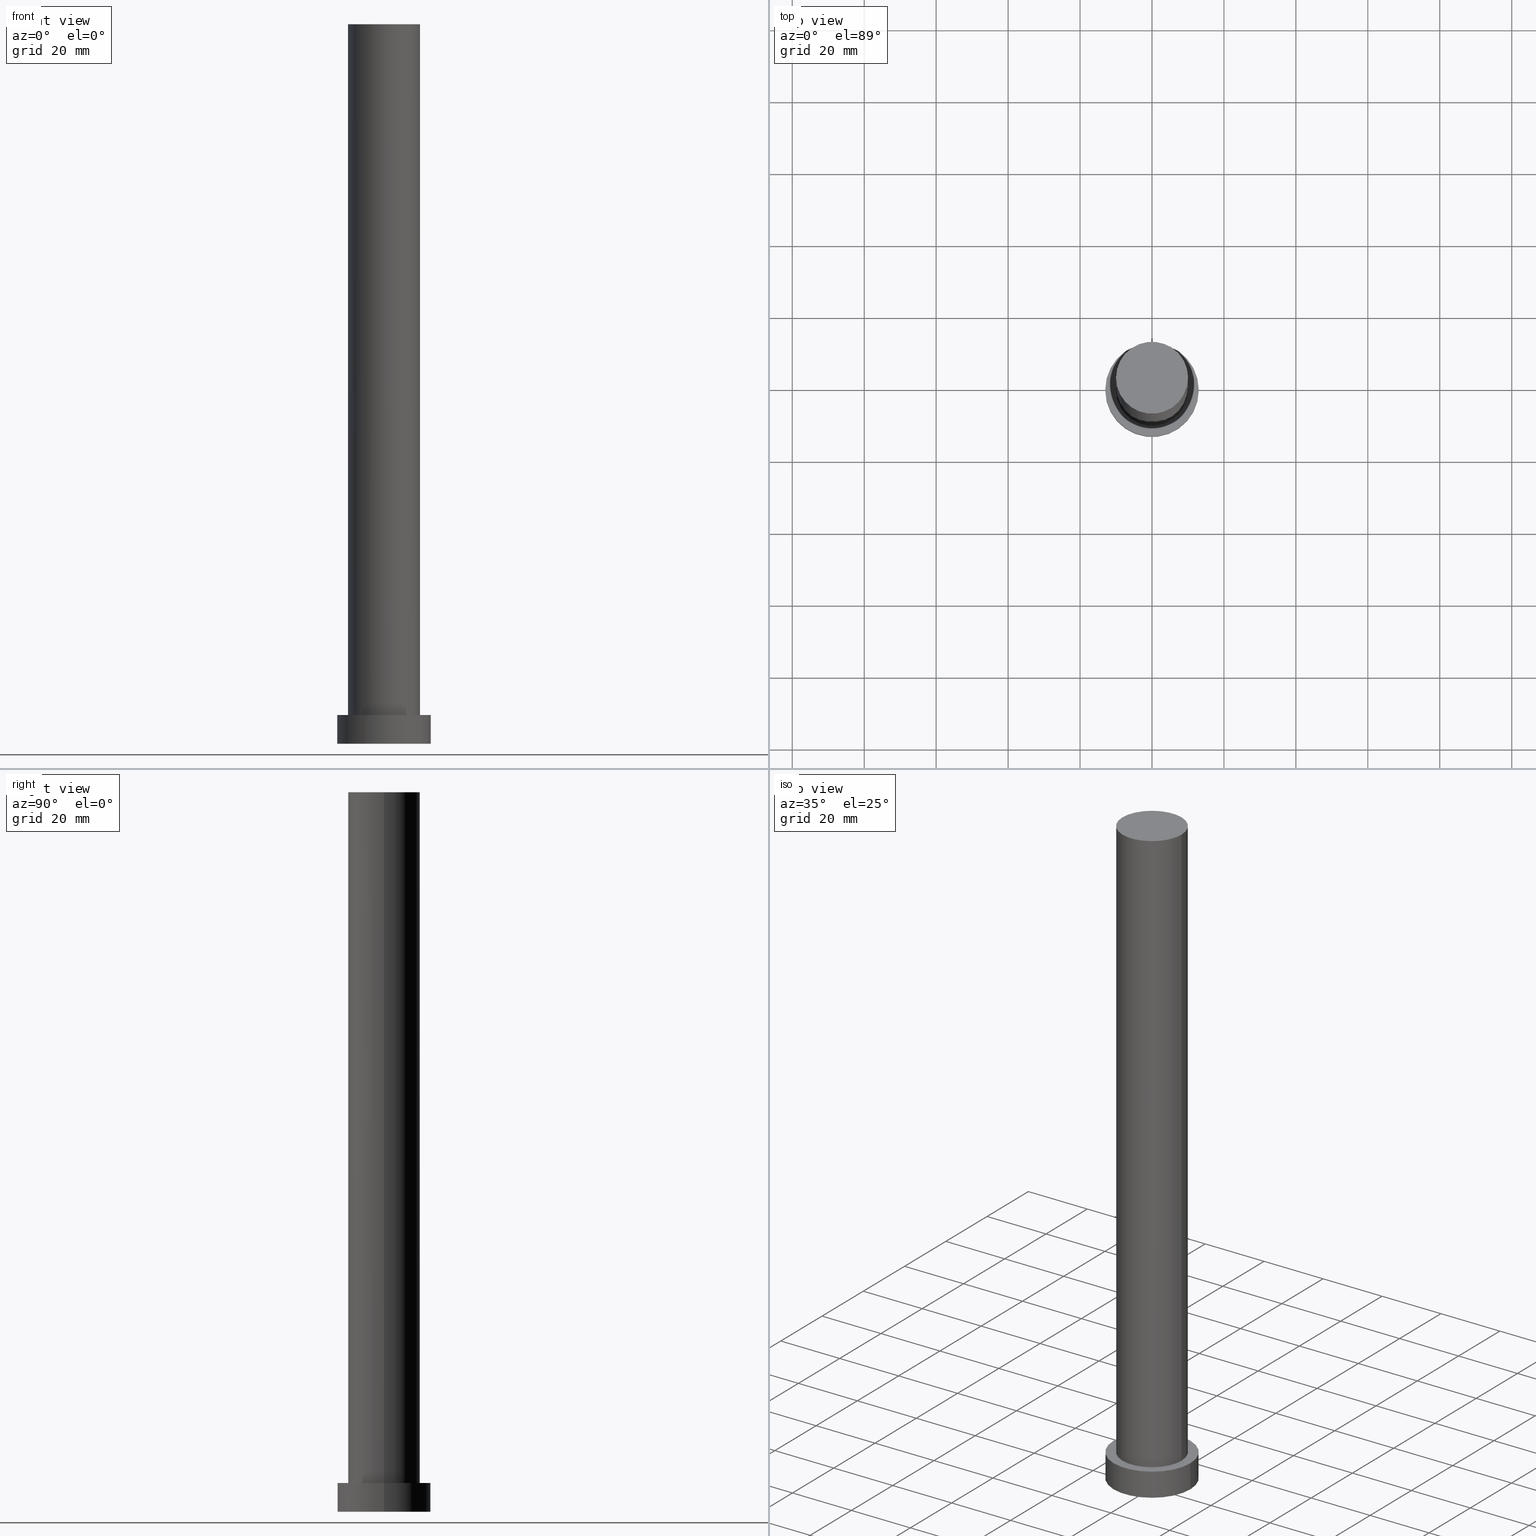
[diagram: canonical four-view strip — front | top / right | iso, engineering-drawing reading convention]
A machine part, canonical four-view strip (front | top / right | iso — engineering-drawing reading convention). The complete STEP part file that produces these views, byte-faithful:
ISO-10303-21;
HEADER;
FILE_DESCRIPTION (( 'STEP AP203' ),
    '1' );
FILE_NAME ('2b24.STEP',
    '2023-02-12T10:32:56',
    ( '' ),
    ( '' ),
    'SwSTEP 2.0',
    'SolidWorks 2019',
    '' );
FILE_SCHEMA (( 'CONFIG_CONTROL_DESIGN' ));
ENDSEC;

DATA;
#1 = CARTESIAN_POINT ( 'NONE',  ( 10.00000000000000000, 1.224646799147353256E-15, 8.000000000000000000 ) ) ;
#2 = CLOSED_SHELL ( 'NONE', ( #17, #122, #149, #227, #193, #126, #152 ) ) ;
#3 = APPROVAL_PERSON_ORGANIZATION ( #115, #173, #223 ) ;
#4 = DIRECTION ( 'NONE',  ( 1.000000000000000000, 0.000000000000000000, 0.000000000000000000 ) ) ;
#5 = FACE_OUTER_BOUND ( 'NONE', #71, .T. ) ;
#6 = APPLICATION_PROTOCOL_DEFINITION ( 'international standard', 'config_control_design', 1994, #162 ) ;
#7 = AXIS2_PLACEMENT_3D ( 'NONE', #160, #60, #157 ) ;
#8 = CALENDAR_DATE ( 2023, 12, 2 ) ;
#9 = MECHANICAL_CONTEXT ( 'NONE', #175, 'mechanical' ) ;
#10 = PERSON_AND_ORGANIZATION_ROLE ( 'design_supplier' ) ;
#11 = APPROVAL_STATUS ( 'not_yet_approved' ) ;
#12 = DIRECTION ( 'NONE',  ( 1.000000000000000000, 0.000000000000000000, 0.000000000000000000 ) ) ;
#13 = ORIENTED_EDGE ( 'NONE', *, *, #253, .T. ) ;
#14 = CYLINDRICAL_SURFACE ( 'NONE', #133, 10.00000000000000000 ) ;
#15 = CARTESIAN_POINT ( 'NONE',  ( 0.000000000000000000, 0.000000000000000000, 200.0000000000000000 ) ) ;
#16 = CARTESIAN_POINT ( 'NONE',  ( 0.000000000000000000, 0.000000000000000000, 0.000000000000000000 ) ) ;
#17 = ADVANCED_FACE ( 'NONE', ( #166 ), #14, .T. ) ;
#18 = LOCAL_TIME ( 11, 32, 56.00000000000000000, #201 ) ;
#19 = DIRECTION ( 'NONE',  ( 1.000000000000000000, 0.000000000000000000, 0.000000000000000000 ) ) ;
#20 = CARTESIAN_POINT ( 'NONE',  ( 0.000000000000000000, 0.000000000000000000, 8.000000000000000000 ) ) ;
#21 = DIRECTION ( 'NONE',  ( 0.000000000000000000, 0.000000000000000000, 1.000000000000000000 ) ) ;
#22 = CARTESIAN_POINT ( 'NONE',  ( 0.000000000000000000, 0.000000000000000000, 200.0000000000000000 ) ) ;
#23 = CARTESIAN_POINT ( 'NONE',  ( 0.000000000000000000, 0.000000000000000000, 8.000000000000000000 ) ) ;
#24 = COORDINATED_UNIVERSAL_TIME_OFFSET ( 1, 0, .AHEAD. ) ;
#25 = CC_DESIGN_SECURITY_CLASSIFICATION ( #99, ( #102 ) ) ;
#26 = CARTESIAN_POINT ( 'NONE',  ( 13.00000000000000178, 1.592040838891559293E-15, 0.000000000000000000 ) ) ;
#27 = CC_DESIGN_PERSON_AND_ORGANIZATION_ASSIGNMENT ( #137, #42, ( #52 ) ) ;
#28 = PERSON_AND_ORGANIZATION ( #222, #148 ) ;
#29 = EDGE_LOOP ( 'NONE', ( #62, #121, #214, #211 ) ) ;
#30 = CC_DESIGN_PERSON_AND_ORGANIZATION_ASSIGNMENT ( #178, #78, ( #237 ) ) ;
#31 = VERTEX_POINT ( 'NONE', #169 ) ;
#32 = APPROVAL_DATE_TIME ( #210, #73 ) ;
#33 = DIRECTION ( 'NONE',  ( -0.000000000000000000, -0.000000000000000000, -1.000000000000000000 ) ) ;
#34 = LINE ( 'NONE', #170, #154 ) ;
#35 = CYLINDRICAL_SURFACE ( 'NONE', #119, 13.00000000000000178 ) ;
#36 = DIRECTION ( 'NONE',  ( 0.000000000000000000, 0.000000000000000000, 1.000000000000000000 ) ) ;
#37 = DATE_TIME_ROLE ( 'creation_date' ) ;
#38 = DATE_AND_TIME ( #207, #163 ) ;
#39 = CALENDAR_DATE ( 2023, 12, 2 ) ;
#40 = LOCAL_TIME ( 11, 32, 56.00000000000000000, #231 ) ;
#41 = CC_DESIGN_PERSON_AND_ORGANIZATION_ASSIGNMENT ( #186, #10, ( #102 ) ) ;
#42 = PERSON_AND_ORGANIZATION_ROLE ( 'creator' ) ;
#43 = SHAPE_DEFINITION_REPRESENTATION ( #70, #184 ) ;
#44 = ORIENTED_EDGE ( 'NONE', *, *, #179, .T. ) ;
#45 = AXIS2_PLACEMENT_3D ( 'NONE', #131, #56, #153 ) ;
#46 = AXIS2_PLACEMENT_3D ( 'NONE', #23, #158, #206 ) ;
#47 = ORIENTED_EDGE ( 'NONE', *, *, #203, .F. ) ;
#48 = DIRECTION ( 'NONE',  ( -0.000000000000000000, -0.000000000000000000, -1.000000000000000000 ) ) ;
#49 = VECTOR ( 'NONE', #174, 1000.000000000000000 ) ;
#50 = EDGE_LOOP ( 'NONE', ( #250, #230, #68, #145 ) ) ;
#51 = FACE_OUTER_BOUND ( 'NONE', #69, .T. ) ;
#52 = PRODUCT_DEFINITION ( 'NEZN�M�', '', #102, #67 ) ;
#53 = CARTESIAN_POINT ( 'NONE',  ( -13.00000000000000178, 0.000000000000000000, 8.000000000000000000 ) ) ;
#54 = DIRECTION ( 'NONE',  ( 0.000000000000000000, 0.000000000000000000, 1.000000000000000000 ) ) ;
#55 = DIRECTION ( 'NONE',  ( 1.000000000000000000, 0.000000000000000000, -0.000000000000000000 ) ) ;
#56 = DIRECTION ( 'NONE',  ( 0.000000000000000000, 0.000000000000000000, 1.000000000000000000 ) ) ;
#57 = CC_DESIGN_PERSON_AND_ORGANIZATION_ASSIGNMENT ( #247, #144, ( #99 ) ) ;
#58 =( LENGTH_UNIT ( ) NAMED_UNIT ( * ) SI_UNIT ( .MILLI., .METRE. ) );
#59 = AXIS2_PLACEMENT_3D ( 'NONE', #75, #151, #19 ) ;
#60 = DIRECTION ( 'NONE',  ( 0.000000000000000000, 0.000000000000000000, 1.000000000000000000 ) ) ;
#61 = PLANE ( 'NONE',  #46 ) ;
#62 = ORIENTED_EDGE ( 'NONE', *, *, #113, .F. ) ;
#63 = EDGE_CURVE ( 'NONE', #164, #86, #242, .T. ) ;
#64 = CALENDAR_DATE ( 2023, 12, 2 ) ;
#65 = ORIENTED_EDGE ( 'NONE', *, *, #179, .F. ) ;
#66 = VECTOR ( 'NONE', #194, 1000.000000000000000 ) ;
#67 = DESIGN_CONTEXT ( 'detailed design', #162, 'design' ) ;
#68 = ORIENTED_EDGE ( 'NONE', *, *, #203, .T. ) ;
#69 = EDGE_LOOP ( 'NONE', ( #251, #104 ) ) ;
#70 = PRODUCT_DEFINITION_SHAPE ( 'NONE', 'NONE',  #52 ) ;
#71 = EDGE_LOOP ( 'NONE', ( #44, #168 ) ) ;
#72 = CC_DESIGN_APPROVAL ( #73, ( #99 ) ) ;
#73 = APPROVAL ( #11, 'NEUR�EN�' ) ;
#74 = CARTESIAN_POINT ( 'NONE',  ( 0.000000000000000000, 0.000000000000000000, 8.000000000000000000 ) ) ;
#75 = CARTESIAN_POINT ( 'NONE',  ( 0.000000000000000000, 0.000000000000000000, 8.000000000000000000 ) ) ;
#76 = DIRECTION ( 'NONE',  ( -0.000000000000000000, -0.000000000000000000, -1.000000000000000000 ) ) ;
#77 = LINE ( 'NONE', #109, #66 ) ;
#78 = PERSON_AND_ORGANIZATION_ROLE ( 'design_owner' ) ;
#79 = FACE_BOUND ( 'NONE', #209, .T. ) ;
#80 = AXIS2_PLACEMENT_3D ( 'NONE', #114, #96, #4 ) ;
#81 = APPROVAL_DATE_TIME ( #97, #196 ) ;
#82 = APPROVAL_ROLE ( '' ) ;
#83 = SECURITY_CLASSIFICATION_LEVEL ( 'unclassified' ) ;
#84 = VERTEX_POINT ( 'NONE', #132 ) ;
#85 = ORIENTED_EDGE ( 'NONE', *, *, #116, .T. ) ;
#86 = VERTEX_POINT ( 'NONE', #1 ) ;
#87 = LOCAL_TIME ( 11, 32, 56.00000000000000000, #24 ) ;
#88 = AXIS2_PLACEMENT_3D ( 'NONE', #16, #110, #91 ) ;
#89 = ORIENTED_EDGE ( 'NONE', *, *, #95, .T. ) ;
#90 = ORIENTED_EDGE ( 'NONE', *, *, #161, .T. ) ;
#91 = DIRECTION ( 'NONE',  ( 1.000000000000000000, 0.000000000000000000, 0.000000000000000000 ) ) ;
#92 = DIRECTION ( 'NONE',  ( -0.000000000000000000, -0.000000000000000000, -1.000000000000000000 ) ) ;
#93 = CYLINDRICAL_SURFACE ( 'NONE', #187, 10.00000000000000000 ) ;
#94 = CARTESIAN_POINT ( 'NONE',  ( -10.00000000000000000, 0.000000000000000000, 8.000000000000000000 ) ) ;
#95 = EDGE_CURVE ( 'NONE', #140, #105, #172, .T. ) ;
#96 = DIRECTION ( 'NONE',  ( 0.000000000000000000, 0.000000000000000000, 1.000000000000000000 ) ) ;
#97 = DATE_AND_TIME ( #8, #18 ) ;
#98 = EDGE_CURVE ( 'NONE', #105, #234, #213, .T. ) ;
#99 = SECURITY_CLASSIFICATION ( '', '', #83 ) ;
#100 = EDGE_CURVE ( 'NONE', #234, #105, #205, .T. ) ;
#101 = DIRECTION ( 'NONE',  ( 0.000000000000000000, 0.000000000000000000, 1.000000000000000000 ) ) ;
#102 = PRODUCT_DEFINITION_FORMATION_WITH_SPECIFIED_SOURCE ( 'LIBOVOLN�', '', #237, .NOT_KNOWN. ) ;
#103 = CALENDAR_DATE ( 2023, 12, 2 ) ;
#104 = ORIENTED_EDGE ( 'NONE', *, *, #100, .F. ) ;
#105 = VERTEX_POINT ( 'NONE', #128 ) ;
#106 = AXIS2_PLACEMENT_3D ( 'NONE', #244, #182, #245 ) ;
#107 = APPROVAL_ROLE ( '' ) ;
#108 = EDGE_LOOP ( 'NONE', ( #90, #13 ) ) ;
#109 = CARTESIAN_POINT ( 'NONE',  ( -10.00000000000000000, 0.000000000000000000, 200.0000000000000000 ) ) ;
#110 = DIRECTION ( 'NONE',  ( 0.000000000000000000, 0.000000000000000000, 1.000000000000000000 ) ) ;
#111 = FACE_OUTER_BOUND ( 'NONE', #29, .T. ) ;
#112 = DIRECTION ( 'NONE',  ( 0.000000000000000000, 0.000000000000000000, 1.000000000000000000 ) ) ;
#113 = EDGE_CURVE ( 'NONE', #31, #86, #34, .T. ) ;
#114 = CARTESIAN_POINT ( 'NONE',  ( 0.000000000000000000, 0.000000000000000000, 8.000000000000000000 ) ) ;
#115 = PERSON_AND_ORGANIZATION ( #222, #148 ) ;
#116 = EDGE_CURVE ( 'NONE', #146, #234, #155, .T. ) ;
#117 = PERSON_AND_ORGANIZATION_ROLE ( 'creator' ) ;
#118 = APPROVAL_STATUS ( 'not_yet_approved' ) ;
#119 = AXIS2_PLACEMENT_3D ( 'NONE', #74, #33, #241 ) ;
#120 = DATE_TIME_ROLE ( 'classification_date' ) ;
#121 = ORIENTED_EDGE ( 'NONE', *, *, #161, .F. ) ;
#122 = ADVANCED_FACE ( 'NONE', ( #127 ), #240, .T. ) ;
#123 = DIRECTION ( 'NONE',  ( -1.000000000000000000, 0.000000000000000000, 0.000000000000000000 ) ) ;
#124 = AXIS2_PLACEMENT_3D ( 'NONE', #177, #54, #198 ) ;
#125 = CARTESIAN_POINT ( 'NONE',  ( 0.000000000000000000, 0.000000000000000000, 8.000000000000000000 ) ) ;
#126 = ADVANCED_FACE ( 'NONE', ( #111 ), #93, .T. ) ;
#127 = FACE_OUTER_BOUND ( 'NONE', #191, .T. ) ;
#128 = CARTESIAN_POINT ( 'NONE',  ( -13.00000000000000178, 0.000000000000000000, 0.000000000000000000 ) ) ;
#129 = LOCAL_TIME ( 11, 32, 56.00000000000000000, #139 ) ;
#130 = FACE_OUTER_BOUND ( 'NONE', #108, .T. ) ;
#131 = CARTESIAN_POINT ( 'NONE',  ( 0.000000000000000000, 0.000000000000000000, 200.0000000000000000 ) ) ;
#132 = CARTESIAN_POINT ( 'NONE',  ( -10.00000000000000000, 0.000000000000000000, 200.0000000000000000 ) ) ;
#133 = AXIS2_PLACEMENT_3D ( 'NONE', #15, #48, #123 ) ;
#134 = DATE_AND_TIME ( #39, #87 ) ;
#135 = CC_DESIGN_DATE_AND_TIME_ASSIGNMENT ( #134, #37, ( #52 ) ) ;
#136 = APPROVAL_STATUS ( 'not_yet_approved' ) ;
#137 = PERSON_AND_ORGANIZATION ( #222, #148 ) ;
#138 = EDGE_CURVE ( 'NONE', #146, #140, #232, .T. ) ;
#139 = COORDINATED_UNIVERSAL_TIME_OFFSET ( 1, 0, .AHEAD. ) ;
#140 = VERTEX_POINT ( 'NONE', #220 ) ;
#141 = CC_DESIGN_DATE_AND_TIME_ASSIGNMENT ( #165, #120, ( #99 ) ) ;
#142 = CC_DESIGN_APPROVAL ( #196, ( #52 ) ) ;
#143 = ORIENTED_EDGE ( 'NONE', *, *, #138, .F. ) ;
#144 = PERSON_AND_ORGANIZATION_ROLE ( 'classification_officer' ) ;
#145 = ORIENTED_EDGE ( 'NONE', *, *, #212, .F. ) ;
#146 = VERTEX_POINT ( 'NONE', #252 ) ;
#147 = ORIENTED_EDGE ( 'NONE', *, *, #95, .F. ) ;
#148 = ORGANIZATION ( 'NEUR�EN�', 'NEUR�EN�', '' ) ;
#149 = ADVANCED_FACE ( 'NONE', ( #150 ), #35, .T. ) ;
#150 = FACE_OUTER_BOUND ( 'NONE', #248, .T. ) ;
#151 = DIRECTION ( 'NONE',  ( 0.000000000000000000, 0.000000000000000000, 1.000000000000000000 ) ) ;
#152 = ADVANCED_FACE ( 'NONE', ( #130 ), #200, .T. ) ;
#153 = DIRECTION ( 'NONE',  ( 1.000000000000000000, 0.000000000000000000, -0.000000000000000000 ) ) ;
#154 = VECTOR ( 'NONE', #92, 1000.000000000000000 ) ;
#155 = LINE ( 'NONE', #254, #49 ) ;
#156 = DIRECTION ( 'NONE',  ( -1.000000000000000000, 0.000000000000000000, 0.000000000000000000 ) ) ;
#157 = DIRECTION ( 'NONE',  ( 1.000000000000000000, 0.000000000000000000, 0.000000000000000000 ) ) ;
#158 = DIRECTION ( 'NONE',  ( 0.000000000000000000, 0.000000000000000000, 1.000000000000000000 ) ) ;
#159 = MANIFOLD_SOLID_BREP ( 'P�idat vysunut�m3', #2 ) ;
#160 = CARTESIAN_POINT ( 'NONE',  ( 0.000000000000000000, 0.000000000000000000, 0.000000000000000000 ) ) ;
#161 = EDGE_CURVE ( 'NONE', #84, #31, #221, .T. ) ;
#162 = APPLICATION_CONTEXT ( 'configuration controlled 3d designs of mechanical parts and assemblies' ) ;
#163 = LOCAL_TIME ( 11, 32, 56.00000000000000000, #202 ) ;
#164 = VERTEX_POINT ( 'NONE', #94 ) ;
#165 = DATE_AND_TIME ( #103, #129 ) ;
#166 = FACE_OUTER_BOUND ( 'NONE', #50, .T. ) ;
#168 = ORIENTED_EDGE ( 'NONE', *, *, #138, .T. ) ;
#167 = VECTOR ( 'NONE', #76, 1000.000000000000000 ) ;
#169 = CARTESIAN_POINT ( 'NONE',  ( 10.00000000000000000, 1.224646799147353256E-15, 200.0000000000000000 ) ) ;
#170 = CARTESIAN_POINT ( 'NONE',  ( 10.00000000000000000, 1.224646799147353256E-15, 200.0000000000000000 ) ) ;
#171 = AXIS2_PLACEMENT_3D ( 'NONE', #20, #176, #156 ) ;
#172 = LINE ( 'NONE', #53, #167 ) ;
#173 = APPROVAL ( #136, 'NEUR�EN�' ) ;
#174 = DIRECTION ( 'NONE',  ( -0.000000000000000000, -0.000000000000000000, -1.000000000000000000 ) ) ;
#175 = APPLICATION_CONTEXT ( 'configuration controlled 3d designs of mechanical parts and assemblies' ) ;
#176 = DIRECTION ( 'NONE',  ( -0.000000000000000000, -0.000000000000000000, -1.000000000000000000 ) ) ;
#177 = CARTESIAN_POINT ( 'NONE',  ( 0.000000000000000000, 0.000000000000000000, 0.000000000000000000 ) ) ;
#178 = PERSON_AND_ORGANIZATION ( #222, #148 ) ;
#179 = EDGE_CURVE ( 'NONE', #140, #146, #188, .T. ) ;
#180 =( NAMED_UNIT ( * ) PLANE_ANGLE_UNIT ( ) SI_UNIT ( $, .RADIAN. ) );
#181 = CIRCLE ( 'NONE', #80, 10.00000000000000000 ) ;
#182 = DIRECTION ( 'NONE',  ( 0.000000000000000000, 0.000000000000000000, 1.000000000000000000 ) ) ;
#183 = CC_DESIGN_PERSON_AND_ORGANIZATION_ASSIGNMENT ( #28, #117, ( #102 ) ) ;
#184 = ADVANCED_BREP_SHAPE_REPRESENTATION ( '2b24', ( #159, #7 ), #233 ) ;
#185 = APPROVAL_DATE_TIME ( #38, #173 ) ;
#186 = PERSON_AND_ORGANIZATION ( #222, #148 ) ;
#187 = AXIS2_PLACEMENT_3D ( 'NONE', #22, #255, #195 ) ;
#188 = CIRCLE ( 'NONE', #225, 13.00000000000000178 ) ;
#189 = ORIENTED_EDGE ( 'NONE', *, *, #98, .T. ) ;
#190 = ORIENTED_EDGE ( 'NONE', *, *, #116, .F. ) ;
#191 = EDGE_LOOP ( 'NONE', ( #143, #85, #228, #147 ) ) ;
#192 = APPROVAL_PERSON_ORGANIZATION ( #243, #196, #82 ) ;
#193 = ADVANCED_FACE ( 'NONE', ( #51 ), #216, .F. ) ;
#194 = DIRECTION ( 'NONE',  ( -0.000000000000000000, -0.000000000000000000, -1.000000000000000000 ) ) ;
#195 = DIRECTION ( 'NONE',  ( -1.000000000000000000, 0.000000000000000000, 0.000000000000000000 ) ) ;
#196 = APPROVAL ( #118, 'NEUR�EN�' ) ;
#197 = CIRCLE ( 'NONE', #106, 10.00000000000000000 ) ;
#198 = DIRECTION ( 'NONE',  ( 1.000000000000000000, 0.000000000000000000, 0.000000000000000000 ) ) ;
#199 = CARTESIAN_POINT ( 'NONE',  ( 0.000000000000000000, 0.000000000000000000, 0.000000000000000000 ) ) ;
#200 = PLANE ( 'NONE',  #45 ) ;
#201 = COORDINATED_UNIVERSAL_TIME_OFFSET ( 1, 0, .AHEAD. ) ;
#202 = COORDINATED_UNIVERSAL_TIME_OFFSET ( 1, 0, .AHEAD. ) ;
#203 = EDGE_CURVE ( 'NONE', #86, #164, #181, .T. ) ;
#204 = AXIS2_PLACEMENT_3D ( 'NONE', #236, #36, #238 ) ;
#205 = CIRCLE ( 'NONE', #88, 13.00000000000000178 ) ;
#206 = DIRECTION ( 'NONE',  ( 1.000000000000000000, 0.000000000000000000, -0.000000000000000000 ) ) ;
#207 = CALENDAR_DATE ( 2023, 12, 2 ) ;
#208 = APPROVAL_PERSON_ORGANIZATION ( #229, #73, #107 ) ;
#209 = EDGE_LOOP ( 'NONE', ( #215, #47 ) ) ;
#210 = DATE_AND_TIME ( #64, #40 ) ;
#211 = ORIENTED_EDGE ( 'NONE', *, *, #63, .T. ) ;
#212 = EDGE_CURVE ( 'NONE', #84, #164, #77, .T. ) ;
#213 = CIRCLE ( 'NONE', #124, 13.00000000000000178 ) ;
#214 = ORIENTED_EDGE ( 'NONE', *, *, #212, .T. ) ;
#215 = ORIENTED_EDGE ( 'NONE', *, *, #63, .F. ) ;
#216 = PLANE ( 'NONE',  #249 ) ;
#217 = CC_DESIGN_APPROVAL ( #173, ( #102 ) ) ;
#218 = UNCERTAINTY_MEASURE_WITH_UNIT (LENGTH_MEASURE( 1.000000000000000082E-05 ), #58, 'distance_accuracy_value', 'NONE');
#219 = CARTESIAN_POINT ( 'NONE',  ( 0.000000000000000000, 0.000000000000000000, 8.000000000000000000 ) ) ;
#220 = CARTESIAN_POINT ( 'NONE',  ( -13.00000000000000178, 0.000000000000000000, 8.000000000000000000 ) ) ;
#221 = CIRCLE ( 'NONE', #204, 10.00000000000000000 ) ;
#222 = PERSON ( 'NEUR�EN�', 'NEUR�EN�', 'NEUR�EN�', ('NEUR�EN�'), ('NEUR�EN�'), ('NEUR�EN�') ) ;
#223 = APPROVAL_ROLE ( '' ) ;
#224 =( NAMED_UNIT ( * ) SI_UNIT ( $, .STERADIAN. ) SOLID_ANGLE_UNIT ( ) );
#225 = AXIS2_PLACEMENT_3D ( 'NONE', #219, #112, #235 ) ;
#226 = APPLICATION_PROTOCOL_DEFINITION ( 'international standard', 'config_control_design', 1994, #175 ) ;
#227 = ADVANCED_FACE ( 'NONE', ( #79, #5 ), #61, .T. ) ;
#228 = ORIENTED_EDGE ( 'NONE', *, *, #100, .T. ) ;
#229 = PERSON_AND_ORGANIZATION ( #222, #148 ) ;
#230 = ORIENTED_EDGE ( 'NONE', *, *, #113, .T. ) ;
#231 = COORDINATED_UNIVERSAL_TIME_OFFSET ( 1, 0, .AHEAD. ) ;
#232 = CIRCLE ( 'NONE', #59, 13.00000000000000178 ) ;
#233 =( GEOMETRIC_REPRESENTATION_CONTEXT ( 3 ) GLOBAL_UNCERTAINTY_ASSIGNED_CONTEXT ( ( #218 ) ) GLOBAL_UNIT_ASSIGNED_CONTEXT ( ( #58, #180, #224 ) ) REPRESENTATION_CONTEXT ( 'NONE', 'WORKASPACE' ) );
#234 = VERTEX_POINT ( 'NONE', #26 ) ;
#235 = DIRECTION ( 'NONE',  ( 1.000000000000000000, 0.000000000000000000, 0.000000000000000000 ) ) ;
#236 = CARTESIAN_POINT ( 'NONE',  ( 0.000000000000000000, 0.000000000000000000, 200.0000000000000000 ) ) ;
#237 = PRODUCT ( '2b24', '2b24', '', ( #9 ) ) ;
#238 = DIRECTION ( 'NONE',  ( 1.000000000000000000, 0.000000000000000000, 0.000000000000000000 ) ) ;
#239 = AXIS2_PLACEMENT_3D ( 'NONE', #125, #101, #12 ) ;
#240 = CYLINDRICAL_SURFACE ( 'NONE', #171, 13.00000000000000178 ) ;
#241 = DIRECTION ( 'NONE',  ( -1.000000000000000000, 0.000000000000000000, 0.000000000000000000 ) ) ;
#242 = CIRCLE ( 'NONE', #239, 10.00000000000000000 ) ;
#243 = PERSON_AND_ORGANIZATION ( #222, #148 ) ;
#244 = CARTESIAN_POINT ( 'NONE',  ( 0.000000000000000000, 0.000000000000000000, 200.0000000000000000 ) ) ;
#245 = DIRECTION ( 'NONE',  ( 1.000000000000000000, 0.000000000000000000, 0.000000000000000000 ) ) ;
#246 = PRODUCT_RELATED_PRODUCT_CATEGORY ( 'detail', '', ( #237 ) ) ;
#247 = PERSON_AND_ORGANIZATION ( #222, #148 ) ;
#248 = EDGE_LOOP ( 'NONE', ( #190, #65, #89, #189 ) ) ;
#249 = AXIS2_PLACEMENT_3D ( 'NONE', #199, #21, #55 ) ;
#250 = ORIENTED_EDGE ( 'NONE', *, *, #253, .F. ) ;
#251 = ORIENTED_EDGE ( 'NONE', *, *, #98, .F. ) ;
#252 = CARTESIAN_POINT ( 'NONE',  ( 13.00000000000000178, 1.592040838891559293E-15, 8.000000000000000000 ) ) ;
#253 = EDGE_CURVE ( 'NONE', #31, #84, #197, .T. ) ;
#254 = CARTESIAN_POINT ( 'NONE',  ( 13.00000000000000178, 1.592040838891559293E-15, 8.000000000000000000 ) ) ;
#255 = DIRECTION ( 'NONE',  ( -0.000000000000000000, -0.000000000000000000, -1.000000000000000000 ) ) ;
ENDSEC;
END-ISO-10303-21;
